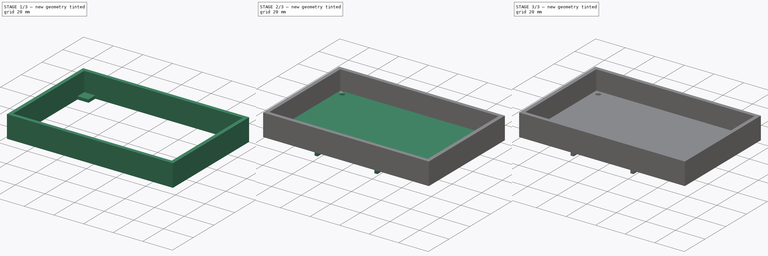
[diagram: build sequence overview — one tinted view per stage of 3, left to right]
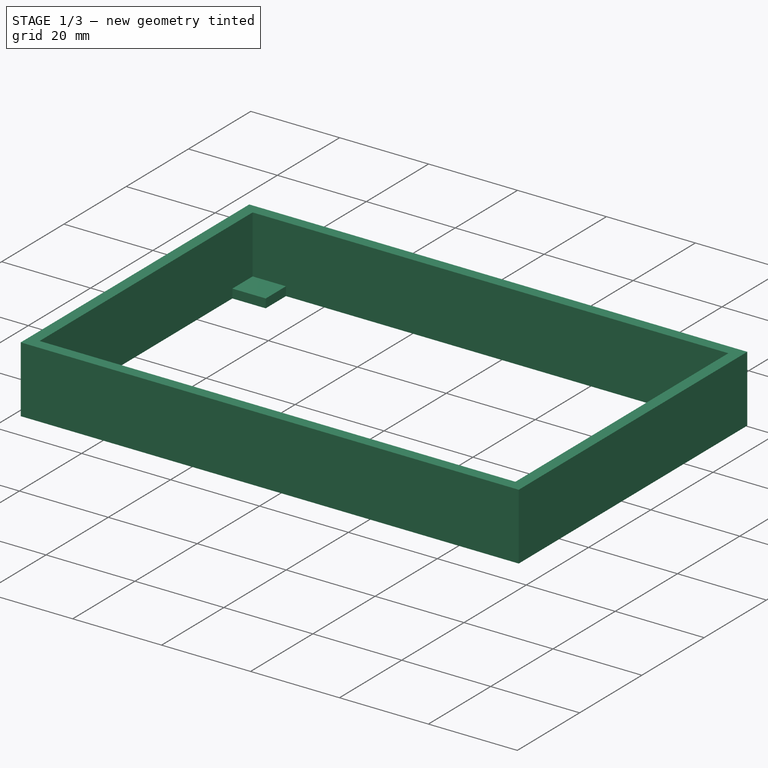
[diagram: stage 1 of 3 — iso view after this stage's code; geometry added in this stage tinted green]
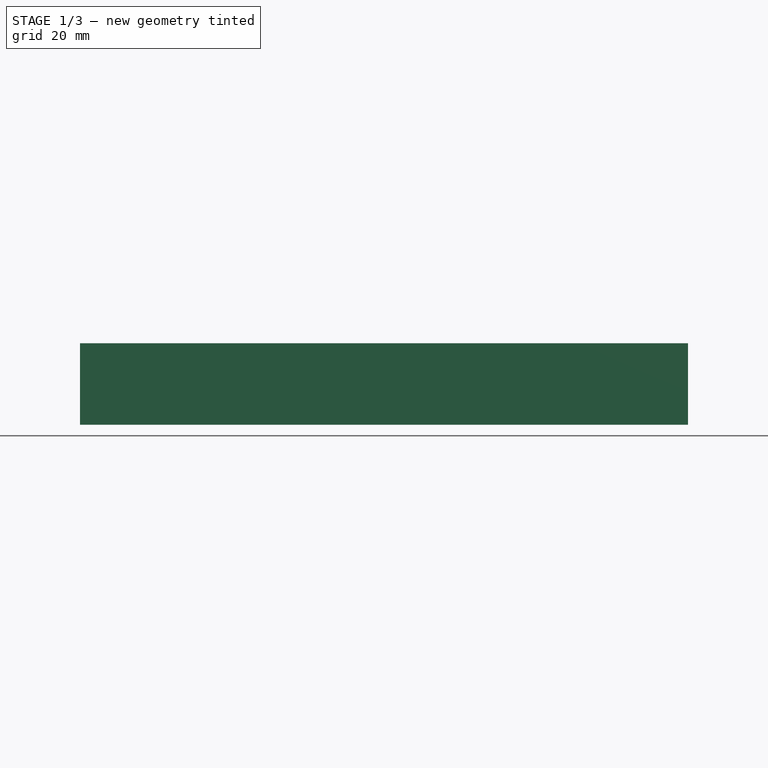
[diagram: stage 1 of 3 — front view after this stage's code; geometry added in this stage tinted green]
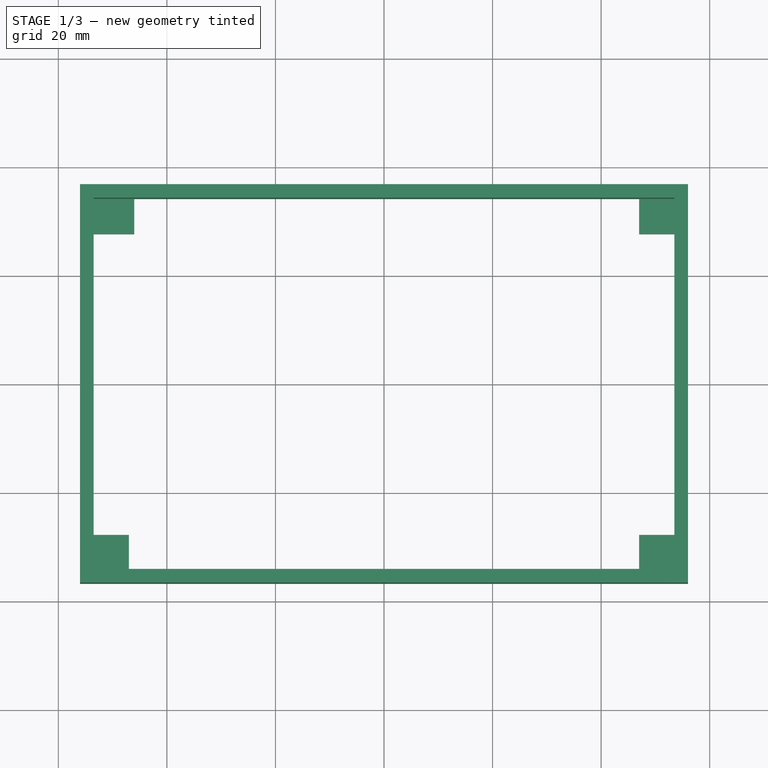
[diagram: stage 1 of 3 — top view after this stage's code; geometry added in this stage tinted green]
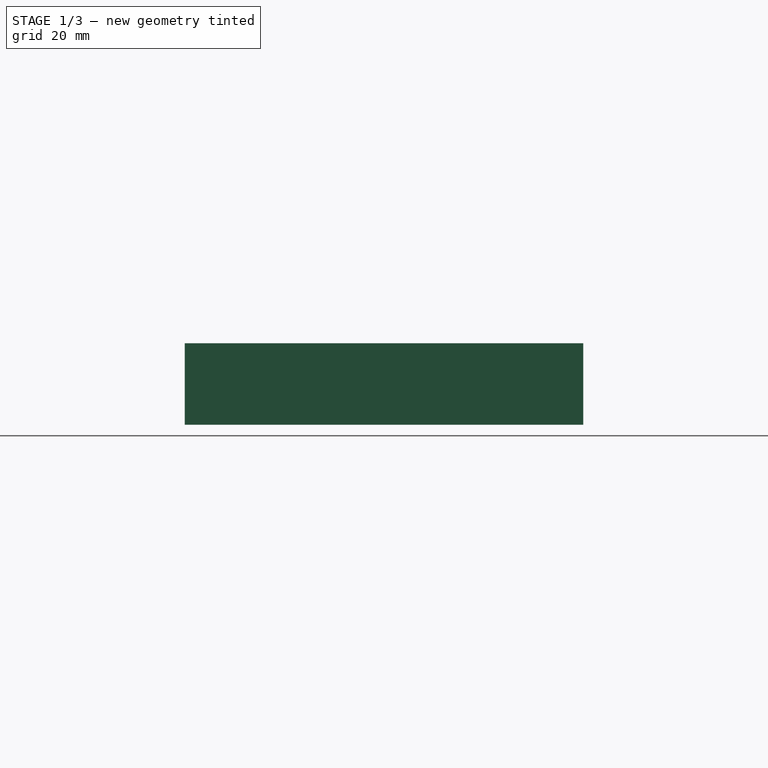
[diagram: stage 1 of 3 — right view after this stage's code; geometry added in this stage tinted green]
FCSTD DOCUMENT  (FreeCAD 1.0R39109 (Git))
Label: 02 Screen Mount v3
License: All rights reserved
LicenseURL: https://en.wikipedia.org/wiki/All_rights_reserved
objects: Sketcher::SketchObject×7, PartDesign::Pad×5, PartDesign::Pocket×2, PartDesign::Body×1
note: 36 computed .brp shape members not serialized (recipe doc carries the construction recipe); baked Part::Feature solids carry a one-line shape summary decoded from their .brp

FEATURE [Sketcher::SketchObject] Sketch
  ArcFitTolerance = 1e-06
  AttachmentSupport = -> [XY_Plane]
  FullyConstrained = true
  MakeInternals = false
  MapMode = 5
  sketch-geometry (8):
    g0: LineSegment StartX=-53.5 StartY=-34.2 StartZ=0 EndX=53.5 EndY=-34.2 EndZ=0
    g1: LineSegment StartX=53.5 StartY=-34.2 StartZ=0 EndX=53.5 EndY=34.2 EndZ=0
    g2: LineSegment StartX=53.5 StartY=34.2 StartZ=0 EndX=-53.5 EndY=34.2 EndZ=0
    g3: LineSegment StartX=-53.5 StartY=34.2 StartZ=0 EndX=-53.5 EndY=-34.2 EndZ=0
    g4: LineSegment StartX=56 StartY=-36.7 StartZ=0 EndX=56 EndY=36.7 EndZ=0
    g5: LineSegment StartX=56 StartY=36.7 StartZ=0 EndX=-56 EndY=36.7 EndZ=0
    g6: LineSegment StartX=-56 StartY=36.7 StartZ=0 EndX=-56 EndY=-36.7 EndZ=0
    g7: LineSegment StartX=-56 StartY=-36.7 StartZ=0 EndX=56 EndY=-36.7 EndZ=0
  constraints (24):
    c: Coincident(g0,g1)
    c: Coincident(g1,g2)
    c: Coincident(g2,g3)
    c: Coincident(g3,g0)
    c: Horizontal(g0)
    c: Horizontal(g2)
    c: Vertical(g1)
    c: Vertical(g3)
    c: Distance(g1,g3) = 107
    c: Distance(g0,g2) = 68.4
    c: DistanceY(g-1,g2) = 34.2
    c: DistanceX(g2,g-1) = 53.5
    c: Coincident(g4,g5)
    c: Coincident(g5,g6)
    c: Coincident(g6,g7)
    c: Coincident(g7,g4)
    c: Vertical(g4)
    c: Vertical(g6)
    c: Horizontal(g5)
    c: Horizontal(g7)
    c: Distance(g4,g6) = 112
    c: Distance(g5,g7) = 73.4
    c: DistanceY(g-1,g4) = 36.7
    c: DistanceX(g5,g-1) = 56
FEATURE [PartDesign::Pad] Pad
  Direction = (0,0,1)
  Length = 15
  Length2 = 10
  Profile = -> Sketch
  ReferenceAxis = -> Sketch [N_Axis]
  Refine = true
  Suppressed = false
  Type = 0
FEATURE [Sketcher::SketchObject] Sketch001
  ArcFitTolerance = 1e-06
  AttachmentSupport = -> [Pad]
  FullyConstrained = true
  MakeInternals = false
  MapMode = 5
  Placement = pos=(0,0,0) rot=(1,0,0;3.14159rad)
  sketch-geometry (16):
    g0: LineSegment StartX=-53.5 StartY=27.7 StartZ=0 EndX=-47 EndY=27.7 EndZ=0
    g1: LineSegment StartX=-47 StartY=27.7 StartZ=0 EndX=-47 EndY=34.2 EndZ=0
    g2: LineSegment StartX=-47 StartY=34.2 StartZ=0 EndX=-53.5 EndY=34.2 EndZ=0
    g3: LineSegment StartX=-53.5 StartY=34.2 StartZ=0 EndX=-53.5 EndY=27.7 EndZ=0
    g4: LineSegment StartX=-53.5 StartY=-34.2 StartZ=0 EndX=-46 EndY=-34.2 EndZ=0
    g5: LineSegment StartX=-46 StartY=-34.2 StartZ=0 EndX=-46 EndY=-27.7 EndZ=0
    g6: LineSegment StartX=-46 StartY=-27.7 StartZ=0 EndX=-53.5 EndY=-27.7 EndZ=0
    g7: LineSegment StartX=-53.5 StartY=-27.7 StartZ=0 EndX=-53.5 EndY=-34.2 EndZ=0
    g8: LineSegment StartX=53.5 StartY=27.7 StartZ=0 EndX=53.5 EndY=34.2 EndZ=0
    g9: LineSegment StartX=53.5 StartY=34.2 StartZ=0 EndX=47 EndY=34.2 EndZ=0
    g10: LineSegment StartX=47 StartY=34.2 StartZ=0 EndX=47 EndY=27.7 EndZ=0
    g11: LineSegment StartX=47 StartY=27.7 StartZ=0 EndX=53.5 EndY=27.7 EndZ=0
    g12: LineSegment StartX=53.5 StartY=-34.2 StartZ=0 EndX=53.5 EndY=-27.7 EndZ=0
    g13: LineSegment StartX=53.5 StartY=-27.7 StartZ=0 EndX=47 EndY=-27.7 EndZ=0
    g14: LineSegment StartX=47 StartY=-27.7 StartZ=0 EndX=47 EndY=-34.2 EndZ=0
    g15: LineSegment StartX=47 StartY=-34.2 StartZ=0 EndX=53.5 EndY=-34.2 EndZ=0
  constraints (48):
    c: Coincident(g0,g1)
    c: Coincident(g1,g2)
    c: Coincident(g2,g3)
    c: Coincident(g3,g0)
    c: Horizontal(g0)
    c: Horizontal(g2)
    c: Vertical(g1)
    c: Vertical(g3)
    c: Distance(g1,g3) = 6.5
    c: Distance(g0,g2) = 6.5
    c: DistanceX(g2,g-1) = 53.5
    c: DistanceY(g-1,g2) = 34.2
    c: Coincident(g4,g5)
    c: Coincident(g5,g6)
    c: Coincident(g6,g7)
    c: Coincident(g7,g4)
    c: Horizontal(g4)
    c: Horizontal(g6)
    c: Vertical(g5)
    c: Vertical(g7)
    c: Distance(g5,g7) = 7.5
    c: Distance(g4,g6) = 6.5
    c: DistanceY(g4,g-1) = 34.2
    c: DistanceX(g4,g-1) = 53.5
    c: Coincident(g8,g9)
    c: Coincident(g9,g10)
    c: Coincident(g10,g11)
    c: Coincident(g11,g8)
    c: Vertical(g8)
    c: Vertical(g10)
    c: Horizontal(g9)
    c: Horizontal(g11)
    c: Distance(g8,g10) = 6.5
    c: Distance(g9,g11) = 6.5
    c: Coincident(g12,g13)
    c: Coincident(g13,g14)
    c: Coincident(g14,g15)
    c: Coincident(g15,g12)
    c: Vertical(g12)
    c: Vertical(g14)
    c: Horizontal(g13)
    c: Horizontal(g15)
    c: Distance(g12,g14) = 6.5
    c: Distance(g13,g15) = 6.5
    c: DistanceY(g12,g-1) = 34.2
    c: DistanceY(g-1,g8) = 34.2
    c: DistanceX(g-1,g8) = 53.5
    c: DistanceX(g-1,g12) = 53.5
FEATURE [PartDesign::Pad] Pad001
  BaseFeature = -> Pad
  Direction = (0,0,-1)
  Length = 2
  Length2 = 10
  Profile = -> Sketch001
  ReferenceAxis = -> Sketch001 [N_Axis]
  Refine = true
  Reversed = true
  Suppressed = false
  Type = 0
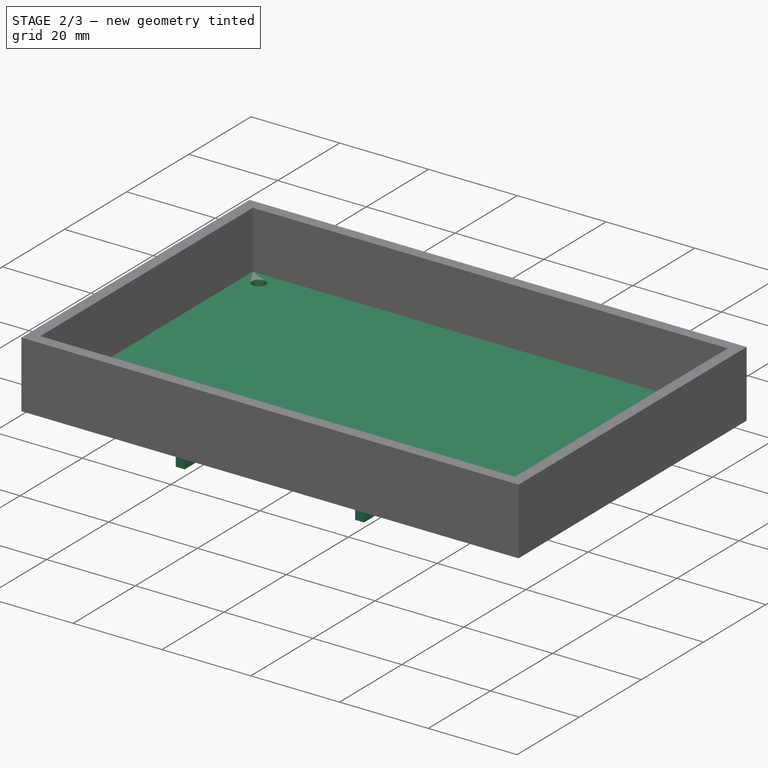
[diagram: stage 2 of 3 — iso view after this stage's code; geometry added in this stage tinted green]
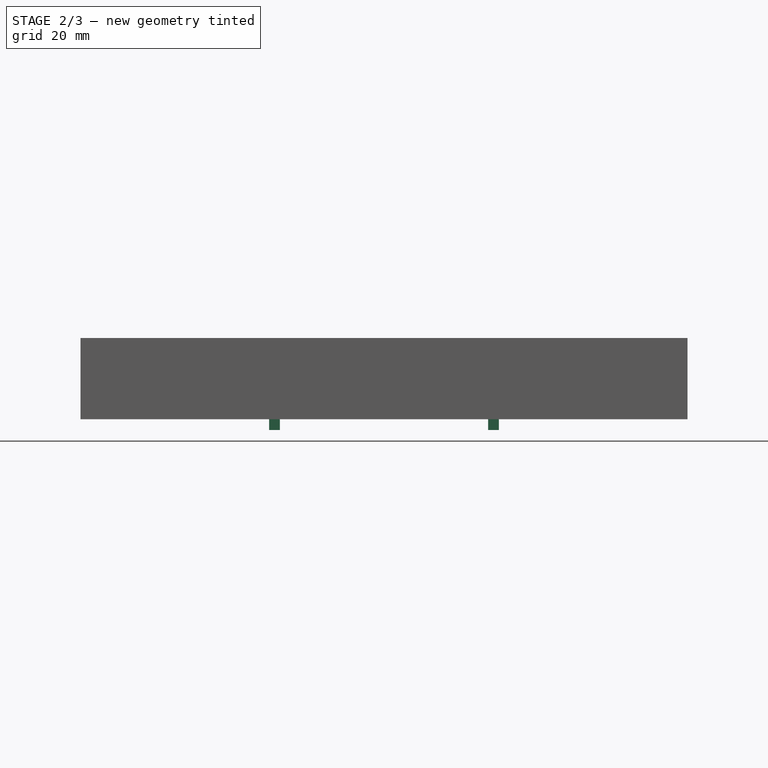
[diagram: stage 2 of 3 — front view after this stage's code; geometry added in this stage tinted green]
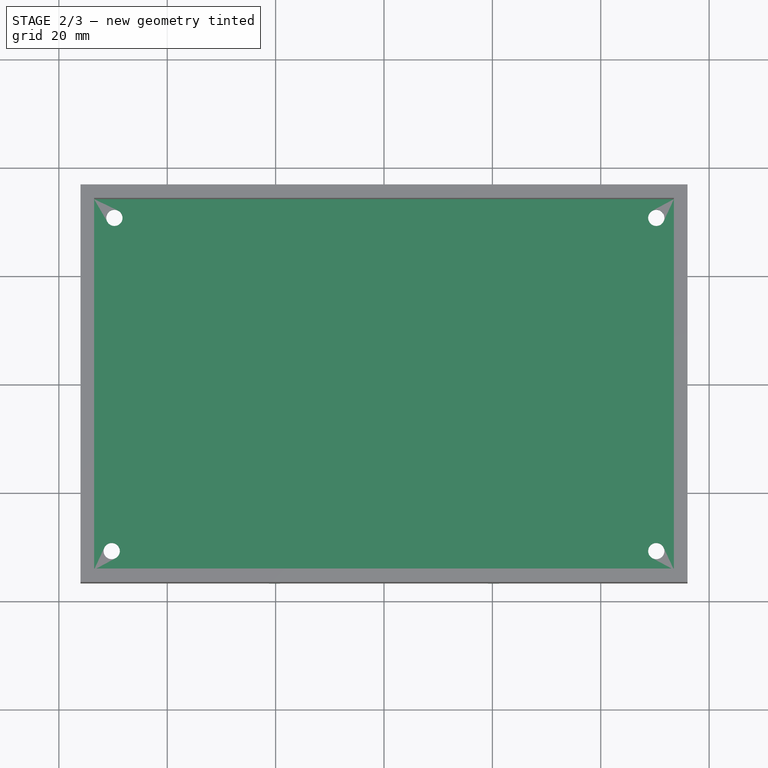
[diagram: stage 2 of 3 — top view after this stage's code; geometry added in this stage tinted green]
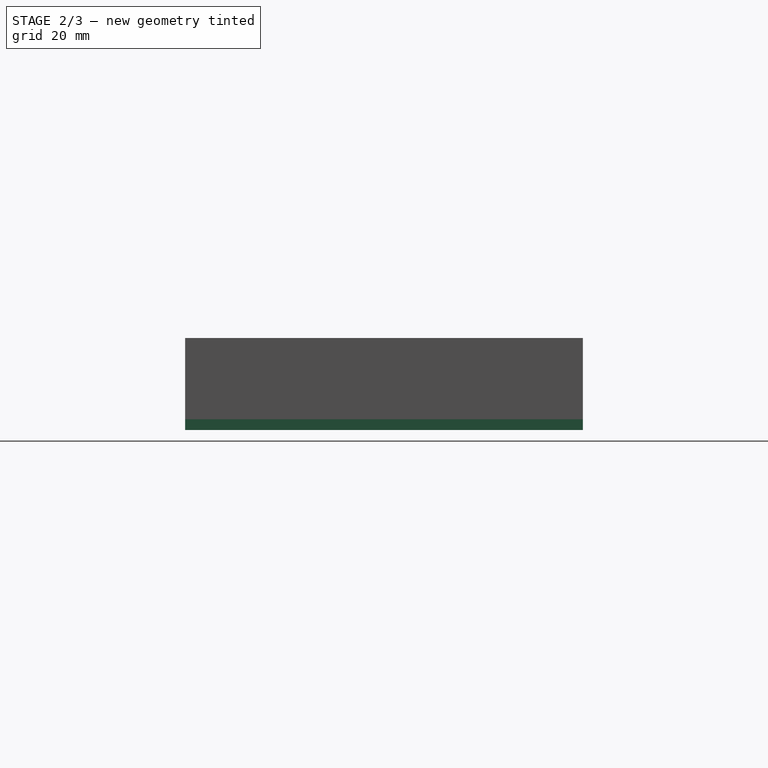
[diagram: stage 2 of 3 — right view after this stage's code; geometry added in this stage tinted green]
FEATURE [Sketcher::SketchObject] Sketch002
  ArcFitTolerance = 1e-06
  AttachmentSupport = -> [Pad001]
  FullyConstrained = true
  MakeInternals = false
  MapMode = 5
  Placement = pos=(0,0,0) rot=(1,0,0;3.14159rad)
  sketch-geometry (4):
    g0: Circle CenterX=-50.25 CenterY=30.75 CenterZ=0 NormalX=0 NormalY=0 NormalZ=1 AngleXU=0 Radius=1.5
    g1: Circle CenterX=50.25 CenterY=-30.75 CenterZ=0 NormalX=0 NormalY=0 NormalZ=1 AngleXU=0 Radius=1.5
    g2: Circle CenterX=-49.75 CenterY=-30.75 CenterZ=0 NormalX=0 NormalY=0 NormalZ=1 AngleXU=0 Radius=1.5
    g3: Circle CenterX=50.25 CenterY=30.75 CenterZ=0 NormalX=0 NormalY=0 NormalZ=1 AngleXU=0 Radius=1.5
  constraints (12):
    c: Diameter(g0) = 3
    c: Diameter(g1) = 3
    c: Diameter(g2) = 3
    c: Diameter(g3) = 3
    c: DistanceX(g0,g-1) = 50.25
    c: DistanceY(g-1,g0) = 30.75
    c: DistanceX(g2,g-1) = 49.75
    c: DistanceX(g-1,g1) = 50.25
    c: DistanceX(g-1,g3) = 50.25
    c: DistanceY(g2,g-1) = 30.75
    c: DistanceY(g1,g-1) = 30.75
    c: DistanceY(g-1,g3) = 30.75
FEATURE [PartDesign::Pocket] Pocket
  BaseFeature = -> Pad001
  Direction = (0,0,1)
  Length = 2
  Length2 = 5
  Profile = -> Sketch002
  ReferenceAxis = -> Sketch002 [N_Axis]
  Refine = true
  Suppressed = false
  Type = 0
FEATURE [Sketcher::SketchObject] Sketch003
  ArcFitTolerance = 1e-06
  AttachmentSupport = -> [Pad]
  FullyConstrained = true
  MakeInternals = false
  MapMode = 5
  Placement = pos=(0,0,0) rot=(1,0,0;3.14159rad)
  sketch-geometry (8):
    g0: LineSegment StartX=-19.205 StartY=36.7 StartZ=0 EndX=-19.205 EndY=-36.7 EndZ=0
    g1: LineSegment StartX=-19.205 StartY=-36.7 StartZ=0 EndX=-21.205 EndY=-36.7 EndZ=0
    g2: LineSegment StartX=-21.205 StartY=-36.7 StartZ=0 EndX=-21.205 EndY=36.7 EndZ=0
    g3: LineSegment StartX=-21.205 StartY=36.7 StartZ=0 EndX=-19.205 EndY=36.7 EndZ=0
    g4: LineSegment StartX=21.205 StartY=-36.7 StartZ=0 EndX=19.205 EndY=-36.7 EndZ=0
    g5: LineSegment StartX=19.205 StartY=-36.7 StartZ=0 EndX=19.205 EndY=36.7 EndZ=0
    g6: LineSegment StartX=19.205 StartY=36.7 StartZ=0 EndX=21.205 EndY=36.7 EndZ=0
    g7: LineSegment StartX=21.205 StartY=36.7 StartZ=0 EndX=21.205 EndY=-36.7 EndZ=0
  constraints (24):
    c: Coincident(g0,g1)
    c: Coincident(g1,g2)
    c: Coincident(g2,g3)
    c: Coincident(g3,g0)
    c: Vertical(g0)
    c: Vertical(g2)
    c: Horizontal(g1)
    c: Horizontal(g3)
    c: Distance(g0,g2) = 2
    c: Distance(g1,g3) = 73.4
    c: Coincident(g4,g5)
    c: Coincident(g5,g6)
    c: Coincident(g6,g7)
    c: Coincident(g7,g4)
    c: Horizontal(g4)
    c: Horizontal(g6)
    c: Vertical(g5)
    c: Vertical(g7)
    c: Distance(g5,g7) = 2
    c: Distance(g4,g6) = 73.4
    c: DistanceY(g-1,g2) = 36.7
    c: DistanceY(g-1,g6) = 36.7
    c: DistanceX(g0,g-1) = 19.205
    c: DistanceX(g-1,g5) = 19.205
FEATURE [PartDesign::Pad] Pad002
  BaseFeature = -> Pocket
  Direction = (0,0,-1)
  Length = 2
  Length2 = 10
  Profile = -> Sketch003
  ReferenceAxis = -> Sketch003 [N_Axis]
  Refine = true
  Suppressed = false
  Type = 0
FEATURE [Sketcher::SketchObject] Sketch004
  ArcFitTolerance = 1e-06
  AttachmentSupport = -> [Pocket]
  FullyConstrained = true
  MakeInternals = false
  MapMode = 5
  Placement = pos=(0,0,0) rot=(1,0,0;3.14159rad)
  sketch-geometry (12):
    g0: LineSegment StartX=47 StartY=-34.2 StartZ=0 EndX=-46 EndY=-34.2 EndZ=0
    g1: LineSegment StartX=-46 StartY=-34.2 StartZ=0 EndX=-46 EndY=-27.7 EndZ=0
    g2: LineSegment StartX=-46 StartY=-27.7 StartZ=0 EndX=-53.5 EndY=-27.7 EndZ=0
    g3: LineSegment StartX=-53.5 StartY=-27.7 StartZ=0 EndX=-53.5 EndY=27.7 EndZ=0
    g4: LineSegment StartX=-53.5 StartY=27.7 StartZ=0 EndX=-47 EndY=27.7 EndZ=0
    g5: LineSegment StartX=-47 StartY=27.7 StartZ=0 EndX=-47 EndY=34.2 EndZ=0
    g6: LineSegment StartX=-47 StartY=34.2 StartZ=0 EndX=47 EndY=34.2 EndZ=0
    g7: LineSegment StartX=47 StartY=34.2 StartZ=0 EndX=47 EndY=27.7 EndZ=0
    g8: LineSegment StartX=47 StartY=27.7 StartZ=0 EndX=53.5 EndY=27.7 EndZ=0
    g9: LineSegment StartX=53.5 StartY=27.7 StartZ=0 EndX=53.5 EndY=-27.7 EndZ=0
    g10: LineSegment StartX=53.5 StartY=-27.7 StartZ=0 EndX=47 EndY=-27.7 EndZ=0
    g11: LineSegment StartX=47 StartY=-27.7 StartZ=0 EndX=47 EndY=-34.2 EndZ=0
  constraints (36):
    c: Horizontal(g0)
    c: Coincident(g0,g1)
    c: Coincident(g1,g2)
    c: Horizontal(g2)
    c: Coincident(g2,g3)
    c: Vertical(g3)
    c: Coincident(g3,g4)
    c: Horizontal(g4)
    c: Coincident(g4,g5)
    c: Coincident(g5,g6)
    c: Horizontal(g6)
    c: Coincident(g6,g7)
    c: Vertical(g7)
    c: Coincident(g7,g8)
    c: Coincident(g8,g9)
    c: Vertical(g9)
    c: Coincident(g9,g10)
    c: Coincident(g10,g11)
    c: Coincident(g11,g0)
    c: Horizontal(g10)
    c: Horizontal(g8)
    c: Vertical(g11)
    c: Vertical(g1)
    c: Vertical(g5)
    c: Distance(g0) = 93
    c: Distance(g6) = 94
    c: Distance(g5) = 6.5
    c: Distance(g4) = 6.5
    c: Distance(g7) = 6.5
    c: Distance(g8) = 6.5
    c: Distance(g10) = 6.5
    c: Distance(g11) = 6.5
    c: Distance(g1) = 6.5
    c: Distance(g3) = 55.4
    c: DistanceY(g-1,g3) = 27.7
    c: DistanceX(g5,g-1) = 47
FEATURE [PartDesign::Pad] Pad003
  BaseFeature = -> Pad002
  Direction = (0,0,-1)
  Length = 2
  Length2 = 10
  Profile = -> Sketch004
  ReferenceAxis = -> Sketch004 [N_Axis]
  Refine = true
  Reversed = true
  Suppressed = false
  Type = 0
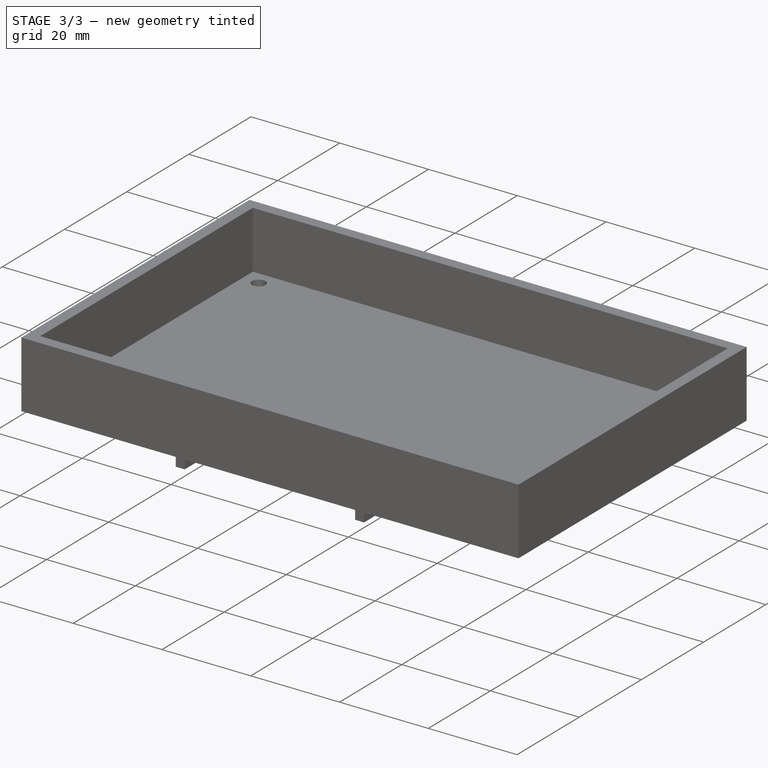
[diagram: stage 3 of 3 — iso view after this stage's code; geometry added in this stage tinted green]
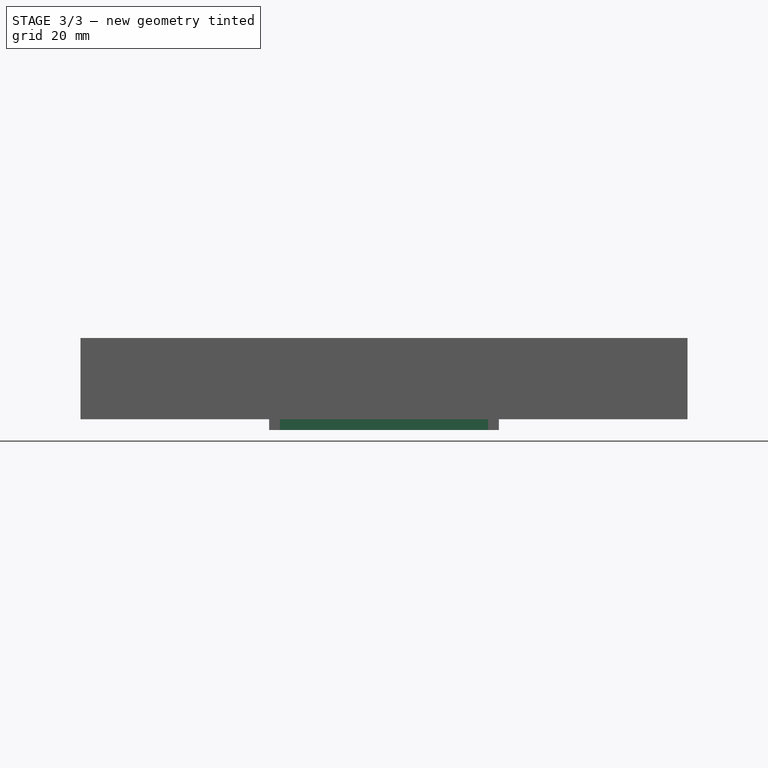
[diagram: stage 3 of 3 — front view after this stage's code; geometry added in this stage tinted green]
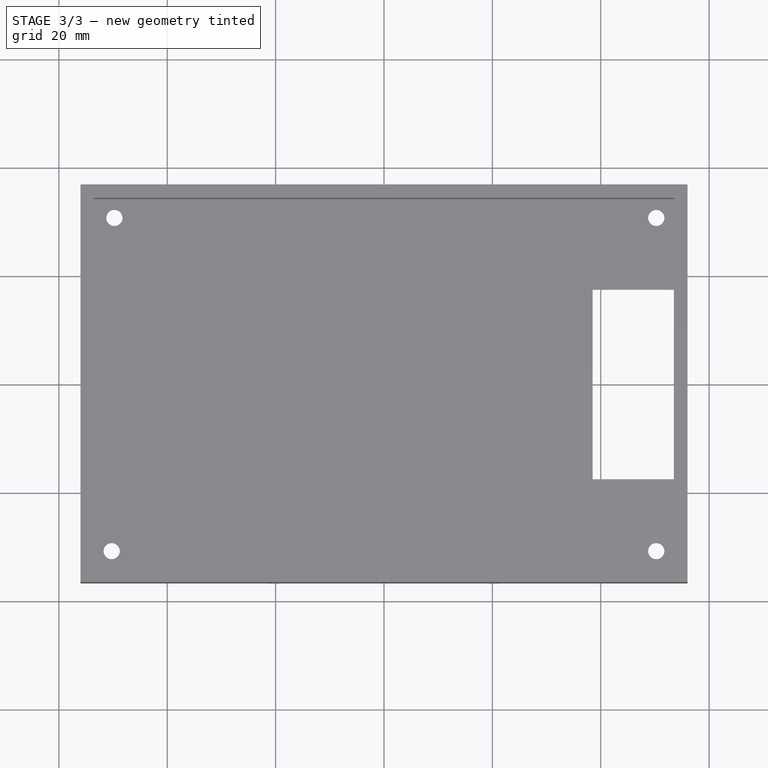
[diagram: stage 3 of 3 — top view after this stage's code; geometry added in this stage tinted green]
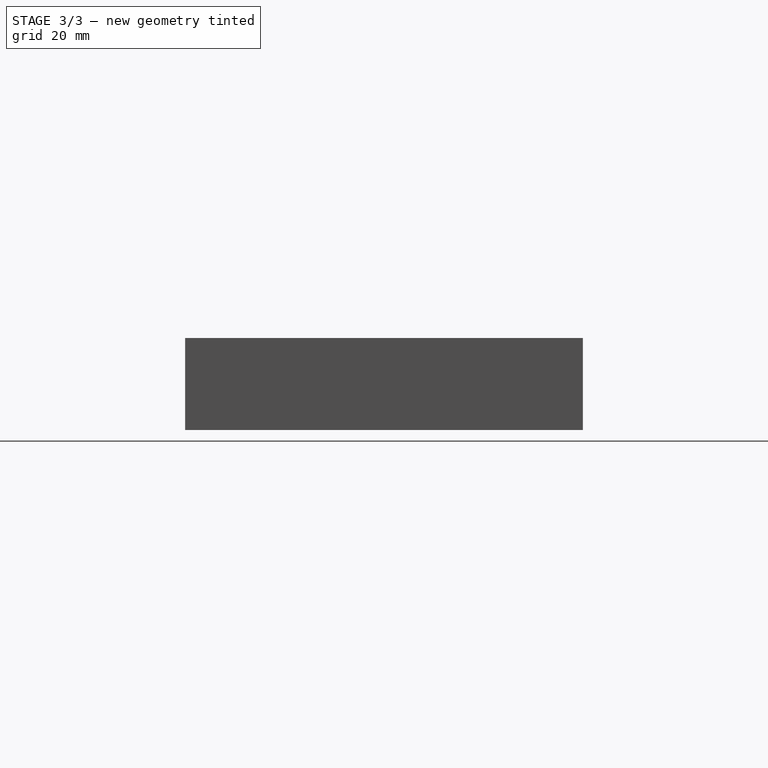
[diagram: stage 3 of 3 — right view after this stage's code; geometry added in this stage tinted green]
FEATURE [Sketcher::SketchObject] Sketch005
  ArcFitTolerance = 1e-06
  AttachmentSupport = -> [Pad003]
  FullyConstrained = true
  MakeInternals = false
  MapMode = 5
  Placement = pos=(0,0,2) rot=(0,0,1;0rad)
  sketch-geometry (4):
    g0: LineSegment StartX=38.5 StartY=17.5 StartZ=0 EndX=38.5 EndY=-17.5 EndZ=0
    g1: LineSegment StartX=38.5 StartY=-17.5 StartZ=0 EndX=53.5 EndY=-17.5 EndZ=0
    g2: LineSegment StartX=53.5 StartY=-17.5 StartZ=0 EndX=53.5 EndY=17.5 EndZ=0
    g3: LineSegment StartX=53.5 StartY=17.5 StartZ=0 EndX=38.5 EndY=17.5 EndZ=0
  constraints (12):
    c: Coincident(g0,g1)
    c: Coincident(g1,g2)
    c: Coincident(g2,g3)
    c: Coincident(g3,g0)
    c: Vertical(g0)
    c: Vertical(g2)
    c: Horizontal(g1)
    c: Horizontal(g3)
    c: Distance(g0,g2) = 15
    c: Distance(g1,g3) = 35
    c: DistanceY(g0,g-1) = 17.5
    c: DistanceX(g-1,g1) = 53.5
FEATURE [PartDesign::Pocket] Pocket001
  BaseFeature = -> Pad003
  Direction = (0,0,-1)
  Length = 5
  Length2 = 5
  Profile = -> Sketch005
  ReferenceAxis = -> Sketch005 [N_Axis]
  Refine = true
  Suppressed = false
  Type = 0
FEATURE [Sketcher::SketchObject] Sketch006
  ArcFitTolerance = 1e-06
  AttachmentSupport = -> [Pocket001]
  FullyConstrained = true
  MakeInternals = false
  MapMode = 5
  Placement = pos=(0,0,0) rot=(1,0,0;3.14159rad)
  sketch-geometry (4):
    g0: LineSegment StartX=-19.205 StartY=-36.7 StartZ=0 EndX=-19.205 EndY=-34.7 EndZ=0
    g1: LineSegment StartX=-19.205 StartY=-34.7 StartZ=0 EndX=19.205 EndY=-34.7 EndZ=0
    g2: LineSegment StartX=19.205 StartY=-34.7 StartZ=0 EndX=19.205 EndY=-36.7 EndZ=0
    g3: LineSegment StartX=19.205 StartY=-36.7 StartZ=0 EndX=-19.205 EndY=-36.7 EndZ=0
  constraints (12):
    c: Coincident(g0,g1)
    c: Coincident(g1,g2)
    c: Coincident(g2,g3)
    c: Coincident(g3,g0)
    c: Vertical(g0)
    c: Vertical(g2)
    c: Horizontal(g1)
    c: Horizontal(g3)
    c: Distance(g0,g2) = 38.41
    c: Distance(g1,g3) = 2
    c: DistanceX(g0,g-1) = 19.205
    c: DistanceY(g0,g-1) = 36.7
FEATURE [PartDesign::Pad] Pad004
  BaseFeature = -> Pocket001
  Direction = (0,0,-1)
  Length = 2
  Length2 = 10
  Profile = -> Sketch006
  ReferenceAxis = -> Sketch006 [N_Axis]
  Refine = true
  Suppressed = false
  Type = 0
FEATURE [PartDesign::Body] Body
  AllowCompound = false
  Group = -> [Sketch,Pad,Sketch001,Pad001,Sketch002,Pocket,Sketch003,Pad002,Sketch004,Pad003,Sketch005,Pocket001,Sketch006,Pad004]
  Origin = -> Origin
  Tip = -> Pad004
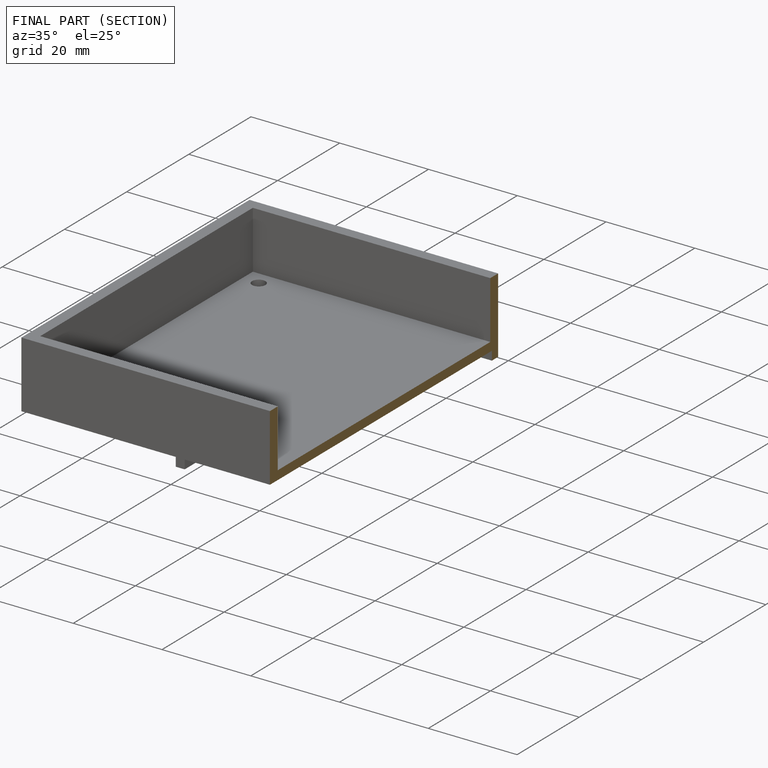
[diagram: finished part — half-section view (interior)]
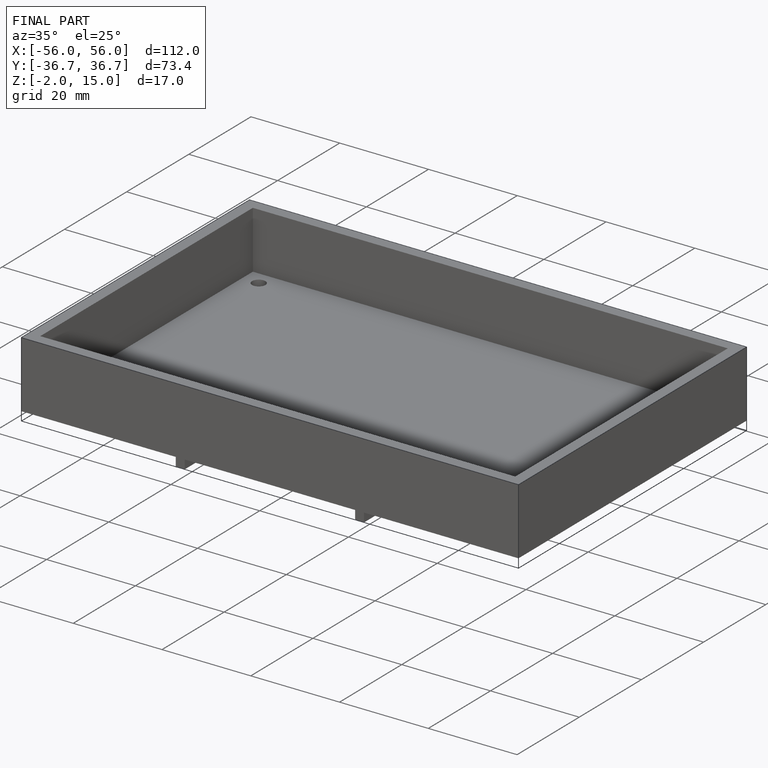
[diagram: finished part — iso view with bounding-box wireframe]
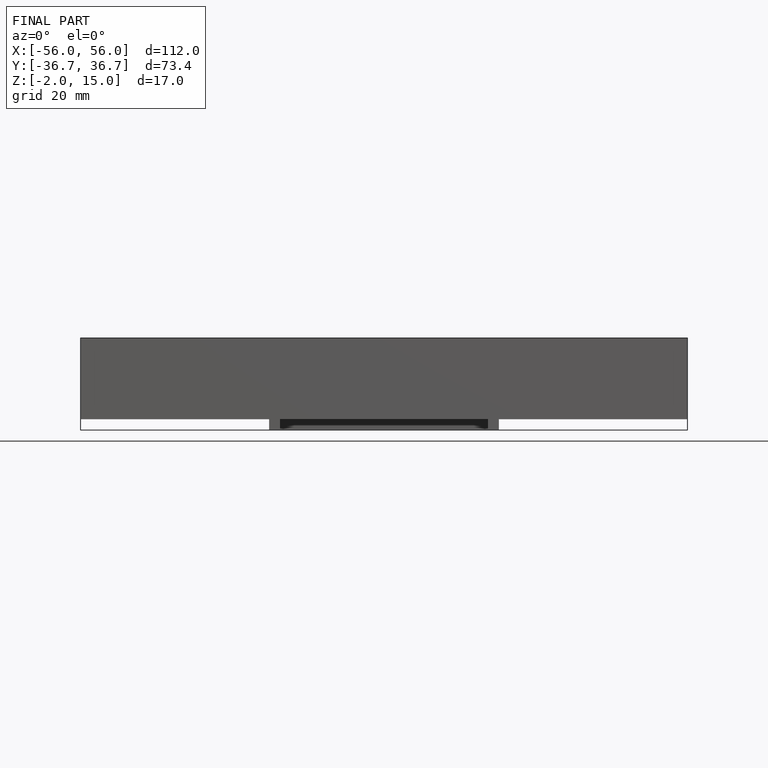
[diagram: finished part — front view with bounding-box wireframe]
